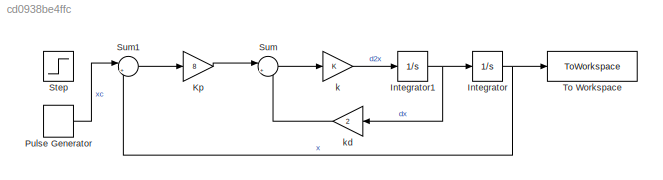
MODEL slx_cd0938be4ffc
KIND model
CONFIG AbsTol = auto
CONFIG EnableMultiTasking = off
CONFIG FixedStep = auto
CONFIG MaxStep = auto
CONFIG MinStep = auto
CONFIG RelTol = 1e-3
CONFIG SampleTimeConstraint = Unconstrained
CONFIG SolverName = VariableStepAuto
CONFIG StartTime = 0.0
CONFIG StopTime = 20
BLOCK [Integrator] Integrator
  Ports = [1, 1]
BLOCK [Integrator] Integrator1
  Ports = [1, 1]
BLOCK [Gain] Kp
  Gain = 8
BLOCK [DiscretePulseGenerator] Pulse Generator
  Period = 200
  Ports = [0, 1]
  PulseWidth = 100
  SampleTime = 0.1
BLOCK [Step] Step
  SampleTime = 0.1
  Time = 0
BLOCK [Sum] Sum
  Inputs = |+-
  Ports = [2, 1]
BLOCK [Sum] Sum1
  Inputs = |+-
  Ports = [2, 1]
BLOCK [ToWorkspace] To Workspace
  FixptAsFi = on
  MaxDataPoints = inf
  Ports = [1]
  SampleTime = -1
  VariableName = x
BLOCK [Gain] k
BLOCK [Gain] kd
  Gain = 2
NET Integrator1:1 -> Integrator:1, kd:1
NET Integrator:1 -> Sum1:2, To Workspace:1
LINE Kp:1 -> Sum:1
LINE Pulse Generator:1 -> Sum1:1
LINE Sum1:1 -> Kp:1
LINE Sum:1 -> k:1
LINE k:1 -> Integrator1:1
LINE kd:1 -> Sum:2
note: NET lines group one-source signal fan-out (src -> all destinations, sorted); 1:1 wires keep LINE
